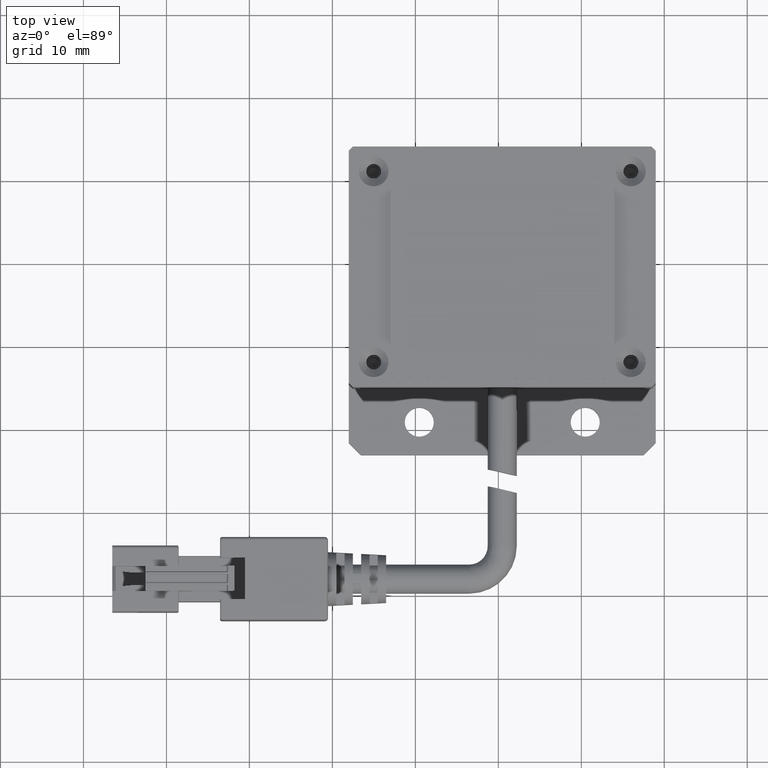
[diagram: clean part render]
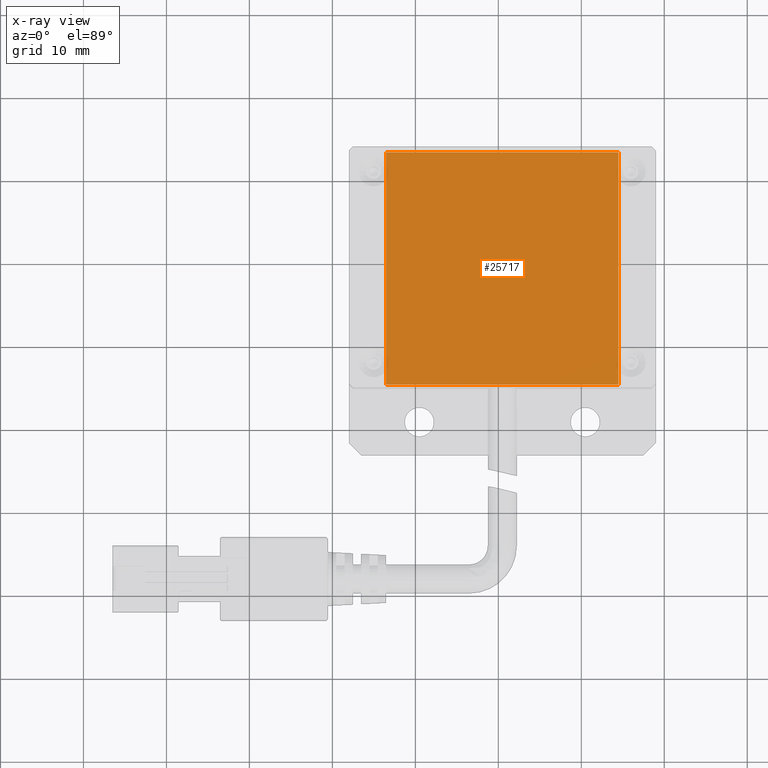
[diagram: x-ray — body ghosted, one internal face saturated and labeled with its STEP entity id]
A machine part, top view, then the same camera in x-ray: the body is ghosted and one INTERNAL B-rep face — a face not visible from any outside direction — is saturated and labeled: STEP entity #25717.
In plain terms, the highlighted planar face has unit normal (0, 0, 1).
Its self-contained STEP definition (entity closure, byte-faithful):
#251 = VECTOR ( 'NONE', #9578, 1000.000000000000000 ) ;
#663 = VERTEX_POINT ( 'NONE', #4499 ) ;
#2153 = CARTESIAN_POINT ( 'NONE',  ( 0.4705994654448219500, -0.5536464299350507500, 0.2999999999836304200 ) ) ;
#2549 = CARTESIAN_POINT ( 'NONE',  ( 14.47059946544482400, -0.5536464299350523100, 0.2999999999836304200 ) ) ;
#2819 = EDGE_CURVE ( 'NONE', #5276, #663, #26241, .T. ) ;
#3020 = CARTESIAN_POINT ( 'NONE',  ( 0.4705994654448204000, -14.55364642993505500, 0.2999999999836304200 ) ) ;
#3235 = VECTOR ( 'NONE', #4951, 1000.000000000000000 ) ;
#4220 = DIRECTION ( 'NONE',  ( 1.000000000000000000, -1.084202172485504600E-016, 0.0000000000000000000 ) ) ;
#4499 = CARTESIAN_POINT ( 'NONE',  ( -13.52940053455517800, 13.44635357006494800, 0.2999999999836304200 ) ) ;
#4610 = DIRECTION ( 'NONE',  ( 1.084202172485504600E-016, 1.000000000000000000, 0.0000000000000000000 ) ) ;
#4951 = DIRECTION ( 'NONE',  ( -1.084202172485504600E-016, -1.000000000000000000, -0.0000000000000000000 ) ) ;
#5276 = VERTEX_POINT ( 'NONE', #8918 ) ;
#6200 = PLANE ( 'NONE',  #20125 ) ;
#8385 = EDGE_CURVE ( 'NONE', #663, #22866, #19614, .T. ) ;
#8787 = ORIENTED_EDGE ( 'NONE', *, *, #8385, .F. ) ;
#8918 = CARTESIAN_POINT ( 'NONE',  ( 14.47059946544482200, 13.44635357006494500, 0.2999999999836304200 ) ) ;
#9075 = CARTESIAN_POINT ( 'NONE',  ( -13.52940053455518000, -0.5536464299350492000, 0.2999999999836304200 ) ) ;
#9578 = DIRECTION ( 'NONE',  ( 1.000000000000000000, -1.084202172485504600E-016, 0.0000000000000000000 ) ) ;
#9779 = VECTOR ( 'NONE', #4610, 1000.000000000000000 ) ;
#9791 = ORIENTED_EDGE ( 'NONE', *, *, #14504, .F. ) ;
#9877 = VECTOR ( 'NONE', #23978, 1000.000000000000000 ) ;
#13202 = CARTESIAN_POINT ( 'NONE',  ( 14.47059946544482200, -14.55364642993505700, 0.2999999999836304200 ) ) ;
#13675 = EDGE_LOOP ( 'NONE', ( #8787, #21737, #20816, #9791 ) ) ;
#14481 = FACE_OUTER_BOUND ( 'NONE', #13675, .T. ) ;
#14504 = EDGE_CURVE ( 'NONE', #22866, #23335, #16581, .T. ) ;
#16479 = DIRECTION ( 'NONE',  ( 0.0000000000000000000, 0.0000000000000000000, 1.000000000000000000 ) ) ;
#16581 = LINE ( 'NONE', #3020, #251 ) ;
#19614 = LINE ( 'NONE', #9075, #3235 ) ;
#20021 = LINE ( 'NONE', #2549, #9779 ) ;
#20125 = AXIS2_PLACEMENT_3D ( 'NONE', #2153, #16479, #4220 ) ;
#20816 = ORIENTED_EDGE ( 'NONE', *, *, #25302, .F. ) ;
#21737 = ORIENTED_EDGE ( 'NONE', *, *, #2819, .F. ) ;
#21886 = CARTESIAN_POINT ( 'NONE',  ( 0.4705994654448234500, 13.44635357006494700, 0.2999999999836304200 ) ) ;
#22866 = VERTEX_POINT ( 'NONE', #23909 ) ;
#23335 = VERTEX_POINT ( 'NONE', #13202 ) ;
#23909 = CARTESIAN_POINT ( 'NONE',  ( -13.52940053455517800, -14.55364642993505300, 0.2999999999836304200 ) ) ;
#23978 = DIRECTION ( 'NONE',  ( -1.000000000000000000, 1.084202172485504600E-016, -0.0000000000000000000 ) ) ;
#25302 = EDGE_CURVE ( 'NONE', #23335, #5276, #20021, .T. ) ;
#25717 = ADVANCED_FACE ( 'NONE', ( #14481 ), #6200, .F. ) ;
#26241 = LINE ( 'NONE', #21886, #9877 ) ;